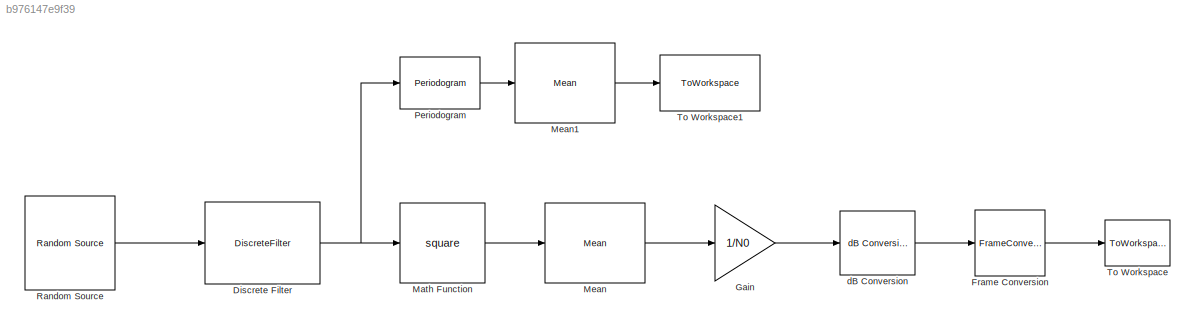
MODEL slx_b976147e9f39
KIND model
CONFIG AbsTol = auto
CONFIG EnableMultiTasking = off
CONFIG FixedStep = auto
CONFIG MaxStep = auto
CONFIG MinStep = auto
CONFIG RelTol = 1e-3
CONFIG SampleTimeConstraint = Unconstrained
CONFIG Solver = VariableStepDiscrete
CONFIG SolverName = VariableStepDiscrete
CONFIG StartTime = 0.0
CONFIG StopTime = 10
BLOCK [DiscreteFilter] Discrete Filter
  Denominator = [1 -zp]
  InputPortMap = u0
  Numerator = [0 lam]
  Ports = [1, 1]
BLOCK [FrameConversion] Frame Conversion
  InheritSamplingMode = off
  OutFrame = Sample-based
  Ports = [1, 1]
BLOCK [Gain] Gain
  Gain = 1/N0
  OutDataTypeStr = Inherit: Inherit via internal rule
  ParamDataTypeStr = Inherit: Inherit via internal rule
  SaturateOnIntegerOverflow = off
BLOCK [Math] Math Function
  Operator = square
  Ports = [1, 1]
BLOCK [Reference] Mean  REF=dspstat3/Mean
  Ports = [1, 1]
  SourceBlock = dspstat3/Mean
  SourceType = Mean
  UserDataPersistent = on
BLOCK [Reference] Mean1  REF=dspstat3/Mean
  Ports = [1, 1]
  SourceBlock = dspstat3/Mean
  SourceType = Mean
  UserDataPersistent = on
BLOCK [Reference] Periodogram  REF=dspspect3/Periodogram
  Ports = [1, 1]
  SourceBlock = dspspect3/Periodogram
  SourceType = Periodogram
BLOCK [Reference] Random Source  REF=dspsrcs4/Random
Source
  Ports = [0, 1]
  SourceBlock = dspsrcs4/Random\nSource
  SourceType = Random Source
  UserDataPersistent = on
BLOCK [ToWorkspace] To Workspace
  FixptAsFi = on
  MaxDataPoints = 1
  Ports = [1]
  SampleTime = -1
  Save2DSignal = 3-D array (concatenate along third dimension)
  VariableName = BnT
BLOCK [ToWorkspace] To Workspace1
  FixptAsFi = on
  MaxDataPoints = 1
  Ports = [1]
  SampleTime = -1
  Save2DSignal = 3-D array (concatenate along third dimension)
  VariableName = spectrum
BLOCK [Reference] dB Conversion  REF=dspmathops/dB Conversion
  Ports = [1, 1]
  SourceBlock = dspmathops/dB Conversion
  SourceType = dB Conversion
NET Discrete Filter:1 -> Math Function:1, Periodogram:1
LINE Frame Conversion:1 -> To Workspace:1
LINE Gain:1 -> dB Conversion:1
LINE Math Function:1 -> Mean:1
LINE Mean1:1 -> To Workspace1:1
LINE Mean:1 -> Gain:1
LINE Periodogram:1 -> Mean1:1
LINE Random Source:1 -> Discrete Filter:1
LINE dB Conversion:1 -> Frame Conversion:1
note: NET lines group one-source signal fan-out (src -> all destinations, sorted); 1:1 wires keep LINE
